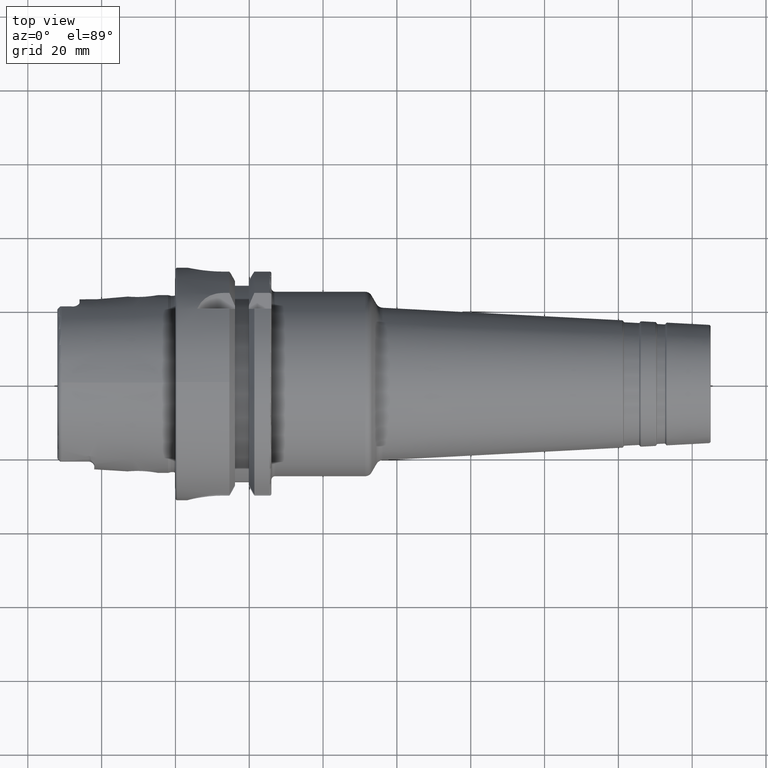
[diagram: clean part render]
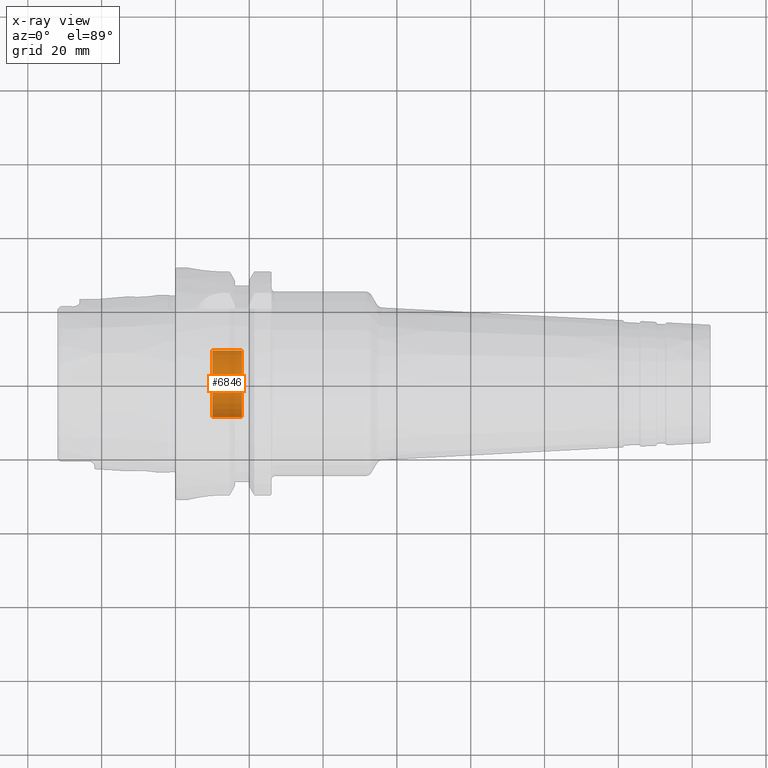
[diagram: x-ray — body ghosted, one internal face saturated and labeled with its STEP entity id]
A machine part, top view, then the same camera in x-ray: the body is ghosted and one INTERNAL B-rep face — a face not visible from any outside direction — is saturated and labeled: STEP entity #6846.
In plain terms, the highlighted cylindrical surface (edge-blend (fillet) strip) has radius 9 mm, axis along (-1, 0, 0).
Its self-contained STEP definition (entity closure, byte-faithful):
#6781=CARTESIAN_POINT('',(3.937007874016E-1,0.E0,0.E0));
#6782=DIRECTION('',(1.E0,0.E0,0.E0));
#6783=DIRECTION('',(0.E0,-1.E0,0.E0));
#6784=AXIS2_PLACEMENT_3D('',#6781,#6782,#6783);
#6791=DIRECTION('',(1.E0,0.E0,0.E0));
#6792=VECTOR('',#6791,3.149606299213E-1);
#6793=CARTESIAN_POINT('',(3.937007874016E-1,-3.543307086614E-1,0.E0));
#6794=LINE('',#6793,#6792);
#6795=DIRECTION('',(1.E0,0.E0,0.E0));
#6796=VECTOR('',#6795,3.149606299213E-1);
#6797=CARTESIAN_POINT('',(3.937007874016E-1,3.543307086614E-1,0.E0));
#6798=LINE('',#6797,#6796);
#6804=CARTESIAN_POINT('',(7.086614173228E-1,0.E0,0.E0));
#6805=DIRECTION('',(-1.E0,0.E0,0.E0));
#6806=DIRECTION('',(0.E0,1.E0,0.E0));
#6807=AXIS2_PLACEMENT_3D('',#6804,#6805,#6806);
#6819=CARTESIAN_POINT('',(7.086614173228E-1,3.543307086614E-1,0.E0));
#6820=CARTESIAN_POINT('',(7.086614173228E-1,-3.543307086614E-1,0.E0));
#6821=VERTEX_POINT('',#6819);
#6822=VERTEX_POINT('',#6820);
#6823=CARTESIAN_POINT('',(3.937007874016E-1,3.543307086614E-1,0.E0));
#6824=CARTESIAN_POINT('',(3.937007874016E-1,-3.543307086614E-1,0.E0));
#6825=VERTEX_POINT('',#6823);
#6826=VERTEX_POINT('',#6824);
#6831=CARTESIAN_POINT('',(9.355386230244E-1,0.E0,0.E0));
#6832=DIRECTION('',(-1.E0,0.E0,0.E0));
#6833=DIRECTION('',(0.E0,1.E0,0.E0));
#6834=AXIS2_PLACEMENT_3D('',#6831,#6832,#6833);
#6835=CYLINDRICAL_SURFACE('',#6834,3.543307086614E-1);
#6837=ORIENTED_EDGE('',*,*,#6836,.T.);
#6839=ORIENTED_EDGE('',*,*,#6838,.T.);
#6841=ORIENTED_EDGE('',*,*,#6840,.T.);
#6843=ORIENTED_EDGE('',*,*,#6842,.F.);
#6844=EDGE_LOOP('',(#6837,#6839,#6841,#6843));
#6845=FACE_OUTER_BOUND('',#6844,.F.);
#6846=ADVANCED_FACE('',(#6845),#6835,.F.);
#6785=CIRCLE('',#6784,3.543307086614E-1);
#6808=CIRCLE('',#6807,3.543307086614E-1);
#6836=EDGE_CURVE('',#6826,#6825,#6785,.T.);
#6838=EDGE_CURVE('',#6825,#6821,#6798,.T.);
#6840=EDGE_CURVE('',#6821,#6822,#6808,.T.);
#6842=EDGE_CURVE('',#6826,#6822,#6794,.T.);